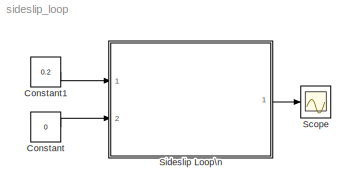
MODEL sideslip_loop
KIND model
BLOCK [Constant] Constant
  SID = 19
  Value = 0
BLOCK [Constant] Constant1
  SID = 33
  Value = 0.2
BLOCK [Scope] Scope
  Floating = off
  NumInputPorts = 1
  Ports = [1]
  SID = 9
  ScopeSpecificationString = Simulink.scopes.TimeScopeBlockCfg('CurrentConfiguration', extmgr.ConfigurationSet(extmgr.Configuration('Core','General UI',true),extmgr.Configuration('Core','Source UI',true),extmgr.Configuration('Sources','WiredSimulink',true),extmgr.Configuration('Visuals','Time Domain',true,'SerializedDisplays',{struct('MinYLimReal','-0.12406','MaxYLimReal','0.09759','YLabelReal','','MinYLimMag','0.00000','MaxY...<+1661ch>
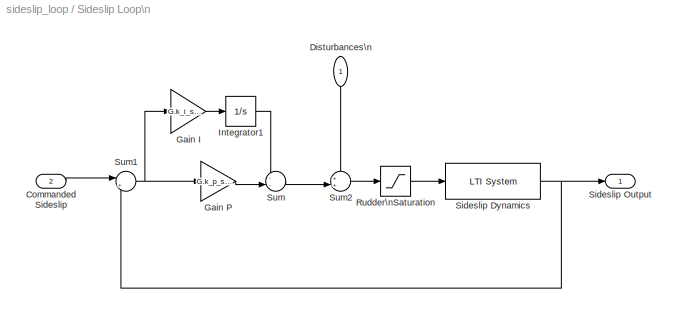
BLOCK [SubSystem] Sideslip Loop\n
  Ports = [2, 1]
  RequestExecContextInheritance = off
  SID = 21
BLOCK [Inport] Sideslip Loop\n/Commanded Sideslip
  IconDisplay = Port number
  Port = 2
  SID = 23
BLOCK [Inport] Sideslip Loop\n/Disturbances\n
  IconDisplay = Port number
  SID = 22
BLOCK [Gain] Sideslip Loop\n/Gain I
  Gain = G.k_i_sideslip
  OutDataTypeStr = Inherit: Inherit via internal rule
  ParamDataTypeStr = Inherit: Inherit via internal rule
  SID = 8
  SaturateOnIntegerOverflow = off
BLOCK [Gain] Sideslip Loop\n/Gain P
  Gain = G.k_p_sideslip
  OutDataTypeStr = Inherit: Inherit via internal rule
  ParamDataTypeStr = Inherit: Inherit via internal rule
  SID = 6
  SaturateOnIntegerOverflow = off
BLOCK [Integrator] Sideslip Loop\n/Integrator1
  Ports = [1, 1]
  SID = 7
BLOCK [Saturate] Sideslip Loop\n/Rudder\nSaturation
  InputPortMap = u0
  LowerLimit = -pi/4
  Ports = [1, 1]
  SID = 20
  UpperLimit = pi/4
BLOCK [Reference] Sideslip Loop\n/Sideslip Dynamics  REF=cstblocks/LTI System
  IC = []
  Ports = [1, 1]
  SID = 1
  SourceBlock = cstblocks/LTI System
  SourceProductBaseCode = CT
  SourceProductName = Control System Toolbox
  SourceType = LTI Block
  sys = T_v_delta_r
BLOCK [Outport] Sideslip Loop\n/Sideslip Output
  IconDisplay = Port number
  SID = 24
BLOCK [Sum] Sideslip Loop\n/Sum
  IconShape = round
  InputSameDT = off
  Inputs = --|
  OutDataTypeStr = Inherit: Inherit via internal rule
  Ports = [2, 1]
  SID = 3
  SaturateOnIntegerOverflow = off
BLOCK [Sum] Sideslip Loop\n/Sum1
  IconShape = round
  InputSameDT = off
  Inputs = |+-
  OutDataTypeStr = Inherit: Inherit via internal rule
  Ports = [2, 1]
  SID = 5
  SaturateOnIntegerOverflow = off
BLOCK [Sum] Sideslip Loop\n/Sum2
  IconShape = round
  InputSameDT = off
  Inputs = ++|
  OutDataTypeStr = Inherit: Inherit via internal rule
  Ports = [2, 1]
  SID = 13
  SaturateOnIntegerOverflow = off
LINE Constant1:1 -> Sideslip Loop\n:1
LINE Constant:1 -> Sideslip Loop\n:2
LINE Sideslip Loop\n/Commanded Sideslip:1 -> Sideslip Loop\n/Sum1:1
LINE Sideslip Loop\n/Disturbances\n:1 -> Sideslip Loop\n/Sum2:1
LINE Sideslip Loop\n/Gain I:1 -> Sideslip Loop\n/Integrator1:1
LINE Sideslip Loop\n/Gain P:1 -> Sideslip Loop\n/Sum:2
LINE Sideslip Loop\n/Integrator1:1 -> Sideslip Loop\n/Sum:1
LINE Sideslip Loop\n/Rudder\nSaturation:1 -> Sideslip Loop\n/Sideslip Dynamics:1
NET Sideslip Loop\n/Sideslip Dynamics:1 -> Sideslip Loop\n/Sideslip Output:1, Sideslip Loop\n/Sum1:2
NET Sideslip Loop\n/Sum1:1 -> Sideslip Loop\n/Gain I:1, Sideslip Loop\n/Gain P:1
LINE Sideslip Loop\n/Sum2:1 -> Sideslip Loop\n/Rudder\nSaturation:1
LINE Sideslip Loop\n/Sum:1 -> Sideslip Loop\n/Sum2:2
LINE Sideslip Loop\n:1 -> Scope:1
note: NET lines group one-source signal fan-out (src -> all destinations, sorted); 1:1 wires keep LINE
